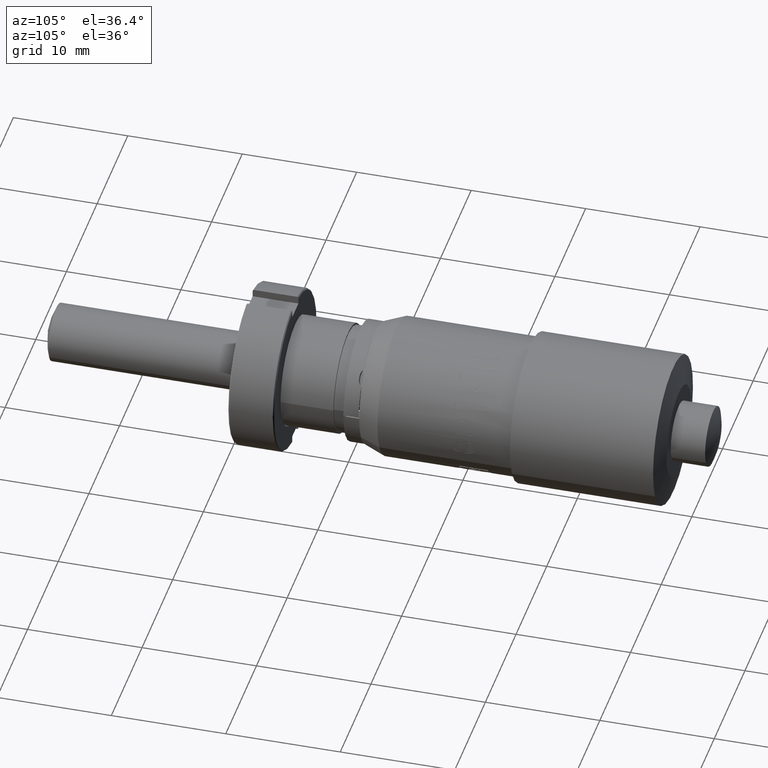
[diagram: clean part render]
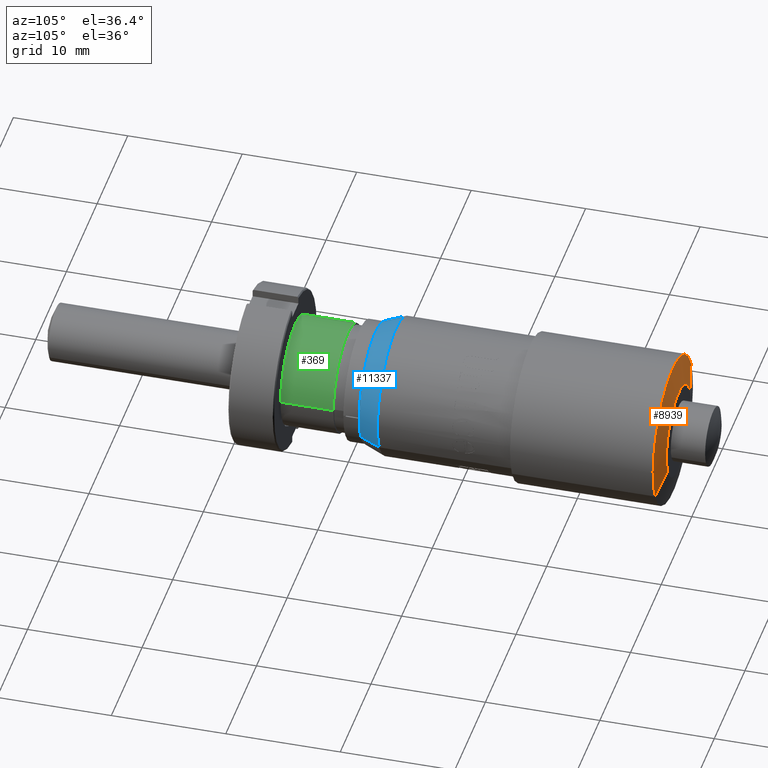
[diagram: same view with three faces highlighted in distinct colors, each labeled with its STEP entity id]
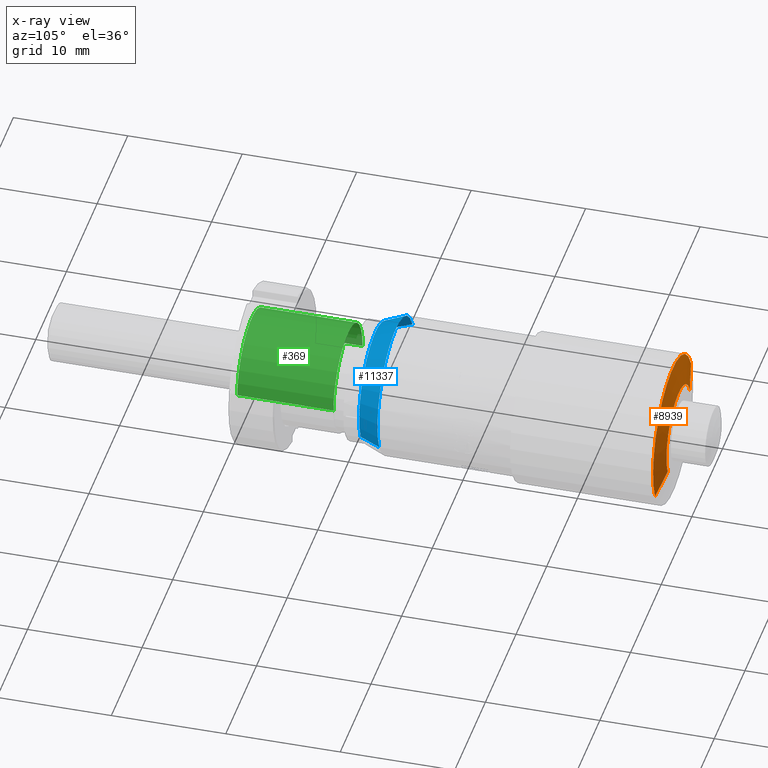
[diagram: x-ray of the same camera — body ghosted, the three highlighted faces saturated]
A machine part, auxiliary view with three faces highlighted in distinct colors.
The next image is the same camera in x-ray (body ghosted, the three faces saturated) — at least one of them is partly hidden behind the body in this view.
Their STEP definitions:

[orange] entity #8939 — the highlighted conical surface has half-angle 78.69 deg.
#416 = EDGE_CURVE ( 'NONE', #12754, #3806, #1173, .T. ) ;
#849 = CARTESIAN_POINT ( 'NONE',  ( 15.18499167076406300, 38.53603129132215300, 20.33287438078602000 ) ) ;
#903 = ORIENTED_EDGE ( 'NONE', *, *, #4314, .T. ) ;
#1173 = CIRCLE ( 'NONE', #6909, 4.000000000000005300 ) ;
#1267 = ORIENTED_EDGE ( 'NONE', *, *, #7745, .T. ) ;
#1322 = EDGE_CURVE ( 'NONE', #3806, #4029, #7960, .T. ) ;
#1608 = CARTESIAN_POINT ( 'NONE',  ( 22.40054605735436500, 38.53603129132215300, 16.87805529809043000 ) ) ;
#1932 = DIRECTION ( 'NONE',  ( -0.8844291494859116700, -0.1961161351381840400, 0.4234661038124401500 ) ) ;
#2097 = DIRECTION ( 'NONE',  ( 1.101876641632675700E-016, -1.000000000000000000, 2.975472225002335400E-018 ) ) ;
#2451 = LINE ( 'NONE', #849, #7775 ) ;
#2864 = DIRECTION ( 'NONE',  ( 0.8844291494859117800, -0.1961161351381839100, -0.4234661038124401000 ) ) ;
#3412 = CARTESIAN_POINT ( 'NONE',  ( 18.79276886405921600, 38.03603129132215300, 18.60546483943822700 ) ) ;
#3486 = DIRECTION ( 'NONE',  ( -1.101876641632675700E-016, 1.000000000000000000, -2.975472225002335400E-018 ) ) ;
#3806 = VERTEX_POINT ( 'NONE', #1608 ) ;
#4029 = VERTEX_POINT ( 'NONE', #12371 ) ;
#4314 = EDGE_CURVE ( 'NONE', #7541, #4029, #13641, .T. ) ;
#4480 = DIRECTION ( 'NONE',  ( -0.9019442983237868600, 0.0000000000000000000, 0.4318523853369479700 ) ) ;
#4723 = CARTESIAN_POINT ( 'NONE',  ( 12.93013092495458900, 38.03603129132215300, 21.41250534412839500 ) ) ;
#5400 = DIRECTION ( 'NONE',  ( 0.9019442983237867500, 0.0000000000000000000, -0.4318523853369485300 ) ) ;
#5982 = AXIS2_PLACEMENT_3D ( 'NONE', #12898, #2097, #5400 ) ;
#6055 = CARTESIAN_POINT ( 'NONE',  ( 22.40054605735436500, 38.53603129132215300, 16.87805529809043000 ) ) ;
#6909 = AXIS2_PLACEMENT_3D ( 'NONE', #10179, #3486, #9915 ) ;
#7541 = VERTEX_POINT ( 'NONE', #4723 ) ;
#7599 = AXIS2_PLACEMENT_3D ( 'NONE', #3412, #10928, #4480 ) ;
#7745 = EDGE_CURVE ( 'NONE', #12754, #7541, #2451, .T. ) ;
#7775 = VECTOR ( 'NONE', #1932, 1000.000000000000100 ) ;
#7856 = FACE_OUTER_BOUND ( 'NONE', #12719, .T. ) ;
#7960 = LINE ( 'NONE', #6055, #10876 ) ;
#8939 = ADVANCED_FACE ( 'NONE', ( #7856 ), #9045, .T. ) ;
#9045 = CONICAL_SURFACE ( 'NONE', #5982, 4.000000000000003600, 1.373400766945015700 ) ;
#9915 = DIRECTION ( 'NONE',  ( -0.9019442983237867500, 0.0000000000000000000, 0.4318523853369483600 ) ) ;
#10179 = CARTESIAN_POINT ( 'NONE',  ( 18.79276886405921600, 38.53603129132215300, 18.60546483943822700 ) ) ;
#10876 = VECTOR ( 'NONE', #2864, 1000.000000000000000 ) ;
#10928 = DIRECTION ( 'NONE',  ( -1.101876641632675700E-016, 1.000000000000000000, -2.975472225002335400E-018 ) ) ;
#11472 = ORIENTED_EDGE ( 'NONE', *, *, #1322, .F. ) ;
#12371 = CARTESIAN_POINT ( 'NONE',  ( 24.65540680316383200, 38.03603129132215300, 15.79842433474806100 ) ) ;
#12719 = EDGE_LOOP ( 'NONE', ( #13471, #1267, #903, #11472 ) ) ;
#12754 = VERTEX_POINT ( 'NONE', #13041 ) ;
#12898 = CARTESIAN_POINT ( 'NONE',  ( 18.79276886405921600, 38.53603129132215300, 18.60546483943822700 ) ) ;
#13041 = CARTESIAN_POINT ( 'NONE',  ( 15.18499167076406100, 38.53603129132215300, 20.33287438078602000 ) ) ;
#13471 = ORIENTED_EDGE ( 'NONE', *, *, #416, .F. ) ;
#13641 = CIRCLE ( 'NONE', #7599, 6.500000000000007100 ) ;

[blue] entity #11337 — the highlighted conical surface has half-angle 21.42 deg.
#185 = CARTESIAN_POINT ( 'NONE',  ( 18.79276886405923700, 13.82041419821185900, 18.60546483943818100 ) ) ;
#261 = CIRCLE ( 'NONE', #2537, 5.300000000000006900 ) ;
#535 = VERTEX_POINT ( 'NONE', #12551 ) ;
#666 = ORIENTED_EDGE ( 'NONE', *, *, #12347, .F. ) ;
#1286 = DIRECTION ( 'NONE',  ( -0.9019442983237868600, 0.0000000000000000000, 0.4318523853369479700 ) ) ;
#2537 = AXIS2_PLACEMENT_3D ( 'NONE', #2561, #10052, #3623 ) ;
#2561 = CARTESIAN_POINT ( 'NONE',  ( 18.79276886405920500, 12.03603129132215700, 18.60546483943822300 ) ) ;
#2647 = CARTESIAN_POINT ( 'NONE',  ( 18.79276886405923700, 13.82041419821185900, 18.60546483943818100 ) ) ;
#2835 = ORIENTED_EDGE ( 'NONE', *, *, #8345, .F. ) ;
#3170 = CARTESIAN_POINT ( 'NONE',  ( 24.20443465400196800, 13.82041419821185900, 16.01435052741648900 ) ) ;
#3623 = DIRECTION ( 'NONE',  ( 0.9019442983237868600, 0.0000000000000000000, -0.4318523853369479200 ) ) ;
#3759 = DIRECTION ( 'NONE',  ( -1.101876641632675700E-016, 1.000000000000000000, -2.975472225002335400E-018 ) ) ;
#6029 = VECTOR ( 'NONE', #10685, 1000.000000000000000 ) ;
#6959 = DIRECTION ( 'NONE',  ( -0.3293873074011650600, 0.9309302805464208000, 0.1577111742546243000 ) ) ;
#7468 = EDGE_CURVE ( 'NONE', #535, #12205, #261, .T. ) ;
#7665 = DIRECTION ( 'NONE',  ( -1.101876641632675700E-016, 1.000000000000000000, -2.975472225002335400E-018 ) ) ;
#7746 = AXIS2_PLACEMENT_3D ( 'NONE', #2647, #3759, #8041 ) ;
#8041 = DIRECTION ( 'NONE',  ( -0.9019442983237868600, 0.0000000000000000000, 0.4318523853369479700 ) ) ;
#8345 = EDGE_CURVE ( 'NONE', #9891, #8800, #13047, .T. ) ;
#8424 = CARTESIAN_POINT ( 'NONE',  ( 14.01246408294313600, 12.03603129132215700, 20.89428248172405500 ) ) ;
#8748 = FACE_OUTER_BOUND ( 'NONE', #11767, .T. ) ;
#8800 = VERTEX_POINT ( 'NONE', #10370 ) ;
#9175 = AXIS2_PLACEMENT_3D ( 'NONE', #185, #7665, #1286 ) ;
#9278 = ORIENTED_EDGE ( 'NONE', *, *, #7468, .F. ) ;
#9604 = LINE ( 'NONE', #13444, #12125 ) ;
#9665 = EDGE_CURVE ( 'NONE', #535, #8800, #11816, .T. ) ;
#9854 = ORIENTED_EDGE ( 'NONE', *, *, #9665, .T. ) ;
#9891 = VERTEX_POINT ( 'NONE', #9975 ) ;
#9975 = CARTESIAN_POINT ( 'NONE',  ( 13.38110307411651000, 13.82041419821185900, 21.19657915145987200 ) ) ;
#10052 = DIRECTION ( 'NONE',  ( 1.101876641632675700E-016, -1.000000000000000000, 2.975472225002335400E-018 ) ) ;
#10370 = CARTESIAN_POINT ( 'NONE',  ( 24.20443465400196800, 13.82041419821185900, 16.01435052741648900 ) ) ;
#10685 = DIRECTION ( 'NONE',  ( 0.3293873074011649000, 0.9309302805464209100, -0.1577111742546243000 ) ) ;
#11337 = ADVANCED_FACE ( 'NONE', ( #8748 ), #11826, .T. ) ;
#11767 = EDGE_LOOP ( 'NONE', ( #9278, #9854, #2835, #666 ) ) ;
#11816 = LINE ( 'NONE', #3170, #6029 ) ;
#11826 = CONICAL_SURFACE ( 'NONE', #7746, 6.000000000000008900, 0.3738443575602842200 ) ;
#12125 = VECTOR ( 'NONE', #6959, 1000.000000000000100 ) ;
#12205 = VERTEX_POINT ( 'NONE', #8424 ) ;
#12347 = EDGE_CURVE ( 'NONE', #12205, #9891, #9604, .T. ) ;
#12551 = CARTESIAN_POINT ( 'NONE',  ( 23.57307364517528100, 12.03603129132215700, 16.31664719715239500 ) ) ;
#13047 = CIRCLE ( 'NONE', #9175, 6.000000000000008900 ) ;
#13444 = CARTESIAN_POINT ( 'NONE',  ( 13.38110307411651000, 13.82041419821185900, 21.19657915145987200 ) ) ;

[green] entity #369 — the highlighted cylindrical surface (partial cylindrical patch) has radius 4.75 mm, axis along (-0, 1, -0).
#190 = CARTESIAN_POINT ( 'NONE',  ( 14.04276886405922500, 1.241528713564861600, 18.60546483943818800 ) ) ;
#221 = AXIS2_PLACEMENT_3D ( 'NONE', #6371, #13932, #7461 ) ;
#369 = ADVANCED_FACE ( 'NONE', ( #10715 ), #6796, .T. ) ;
#439 = CARTESIAN_POINT ( 'NONE',  ( 18.79276886405922300, 72.08255178277248400, 18.60546483943818800 ) ) ;
#478 = DIRECTION ( 'NONE',  ( -1.058937486943297600E-016, 1.000000000000000000, -2.465190328815661900E-032 ) ) ;
#542 = VECTOR ( 'NONE', #4811, 1000.000000000000000 ) ;
#685 = VERTEX_POINT ( 'NONE', #3495 ) ;
#1573 = VERTEX_POINT ( 'NONE', #2120 ) ;
#1683 = AXIS2_PLACEMENT_3D ( 'NONE', #11745, #5285, #12824 ) ;
#2050 = DIRECTION ( 'NONE',  ( -1.058937486943297600E-016, 1.000000000000000000, -2.465190328815661900E-032 ) ) ;
#2120 = CARTESIAN_POINT ( 'NONE',  ( 14.04276886405922500, 9.641528713564842000, 18.60546483943818800 ) ) ;
#3001 = EDGE_CURVE ( 'NONE', #1573, #13579, #6598, .T. ) ;
#3405 = LINE ( 'NONE', #10185, #542 ) ;
#3488 = ORIENTED_EDGE ( 'NONE', *, *, #3001, .F. ) ;
#3495 = CARTESIAN_POINT ( 'NONE',  ( 23.54276886405921900, 1.241528713564862500, 18.60546483943818800 ) ) ;
#3897 = ORIENTED_EDGE ( 'NONE', *, *, #6911, .T. ) ;
#4033 = CARTESIAN_POINT ( 'NONE',  ( 23.54276886405921900, 72.08255178277248400, 18.60546483943818800 ) ) ;
#4746 = ORIENTED_EDGE ( 'NONE', *, *, #9669, .T. ) ;
#4811 = DIRECTION ( 'NONE',  ( -1.058937486943297600E-016, 1.000000000000000000, -2.465190328815661900E-032 ) ) ;
#5224 = ORIENTED_EDGE ( 'NONE', *, *, #12923, .F. ) ;
#5285 = DIRECTION ( 'NONE',  ( -1.058937486943297600E-016, 1.000000000000000000, -2.465190328815661900E-032 ) ) ;
#6141 = VERTEX_POINT ( 'NONE', #190 ) ;
#6371 = CARTESIAN_POINT ( 'NONE',  ( 18.79276886405922300, 1.241528713564862100, 18.60546483943818800 ) ) ;
#6598 = CIRCLE ( 'NONE', #1683, 4.749999999999997300 ) ;
#6796 = CYLINDRICAL_SURFACE ( 'NONE', #7660, 4.749999999999997300 ) ;
#6911 = EDGE_CURVE ( 'NONE', #685, #13579, #13694, .T. ) ;
#7461 = DIRECTION ( 'NONE',  ( 1.000000000000000000, 9.130123557772674500E-017, 0.0000000000000000000 ) ) ;
#7660 = AXIS2_PLACEMENT_3D ( 'NONE', #439, #478, #7901 ) ;
#7901 = DIRECTION ( 'NONE',  ( -1.000000000000000000, 0.0000000000000000000, 0.0000000000000000000 ) ) ;
#8928 = CIRCLE ( 'NONE', #221, 4.749999999999997300 ) ;
#9669 = EDGE_CURVE ( 'NONE', #6141, #685, #8928, .T. ) ;
#10091 = CARTESIAN_POINT ( 'NONE',  ( 23.54276886405921900, 9.641528713564842000, 18.60546483943818800 ) ) ;
#10185 = CARTESIAN_POINT ( 'NONE',  ( 14.04276886405922500, 72.08255178277248400, 18.60546483943818800 ) ) ;
#10715 = FACE_OUTER_BOUND ( 'NONE', #13455, .T. ) ;
#10869 = VECTOR ( 'NONE', #2050, 1000.000000000000000 ) ;
#11745 = CARTESIAN_POINT ( 'NONE',  ( 18.79276886405922300, 9.641528713564842000, 18.60546483943818800 ) ) ;
#12824 = DIRECTION ( 'NONE',  ( -1.000000000000000000, 0.0000000000000000000, 0.0000000000000000000 ) ) ;
#12923 = EDGE_CURVE ( 'NONE', #6141, #1573, #3405, .T. ) ;
#13455 = EDGE_LOOP ( 'NONE', ( #4746, #3897, #3488, #5224 ) ) ;
#13579 = VERTEX_POINT ( 'NONE', #10091 ) ;
#13694 = LINE ( 'NONE', #4033, #10869 ) ;
#13932 = DIRECTION ( 'NONE',  ( -1.058937486943335000E-016, 1.000000000000000000, -2.465190328815661900E-032 ) ) ;